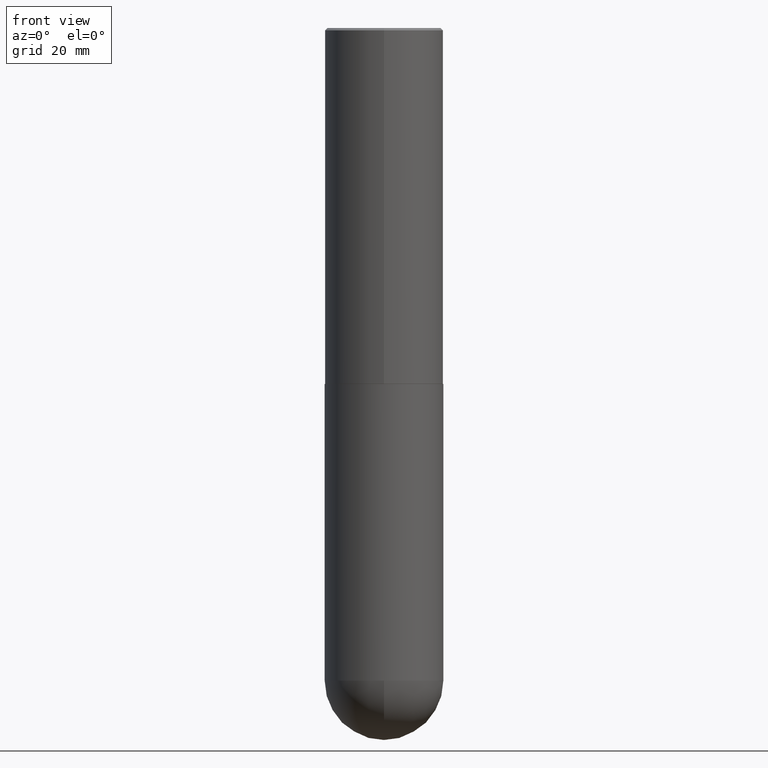
[diagram: clean part render]
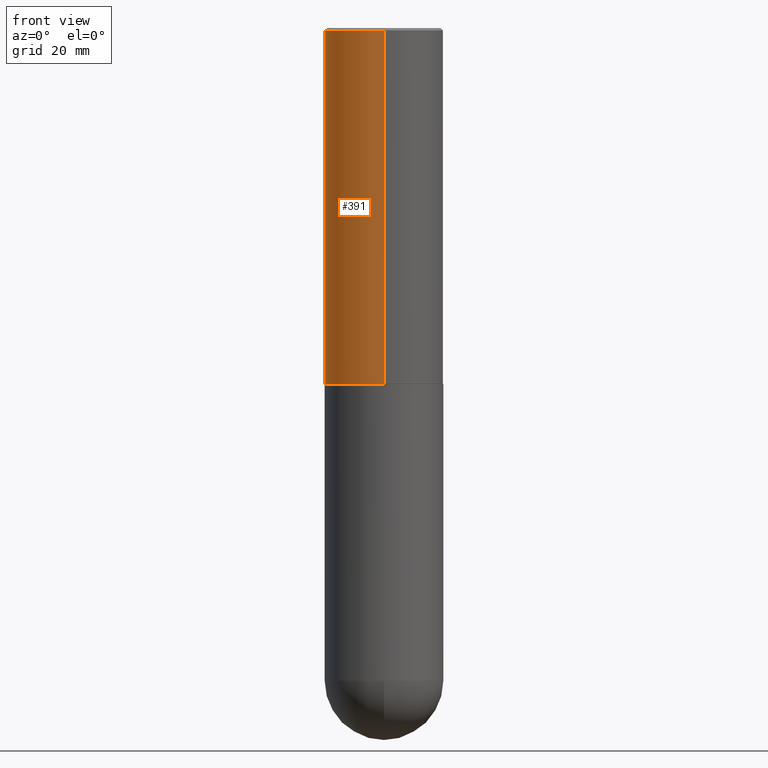
[diagram: same view with one face highlighted and labeled with its STEP entity id]
A machine part, front view. The second image highlights one B-rep face of the part: STEP entity #391.
In plain terms, the highlighted cylindrical surface (partial cylindrical patch) has radius 12.7 mm, axis along (-0, 0, 1).
Its self-contained STEP definition (entity closure, byte-faithful):
#23 = FACE_OUTER_BOUND ( 'NONE', #90, .T. ) ;
#25 = EDGE_CURVE ( 'NONE', #308, #328, #272, .T. ) ;
#30 = CIRCLE ( 'NONE', #96, 0.5000000000000004441 ) ;
#36 = LINE ( 'NONE', #293, #77 ) ;
#39 = DIRECTION ( 'NONE',  ( -2.445032266171691881E-29, 3.492106488988713156E-15, 1.000000000000000000 ) ) ;
#48 = DIRECTION ( 'NONE',  ( -2.445032266171691881E-29, 3.492106488988713156E-15, 1.000000000000000000 ) ) ;
#72 = CARTESIAN_POINT ( 'NONE',  ( -3.491481338843062752E-15, -0.5000000000000108802, -2.998999999999998778 ) ) ;
#76 = CARTESIAN_POINT ( 'NONE',  ( 3.491481338843133355E-15, 0.4999999999999999445, -0.02000000000000185310 ) ) ;
#77 = VECTOR ( 'NONE', #397, 39.37007874015748143 ) ;
#82 = AXIS2_PLACEMENT_3D ( 'NONE', #156, #39, #131 ) ;
#90 = EDGE_LOOP ( 'NONE', ( #242, #223, #237, #281 ) ) ;
#96 = AXIS2_PLACEMENT_3D ( 'NONE', #334, #48, #276 ) ;
#131 = DIRECTION ( 'NONE',  ( -6.982962677686265922E-15, -1.000000000000000000, 3.491643216902136408E-15 ) ) ;
#133 = DIRECTION ( 'NONE',  ( -2.445032266171692161E-29, 3.492106488988713156E-15, 1.000000000000000000 ) ) ;
#146 = CARTESIAN_POINT ( 'NONE',  ( 0.000000000000000000, 0.000000000000000000, 0.000000000000000000 ) ) ;
#153 = VECTOR ( 'NONE', #133, 39.37007874015748143 ) ;
#156 = CARTESIAN_POINT ( 'NONE',  ( 4.890064532343409545E-31, -6.984212977977462847E-17, -0.02000000000000010797 ) ) ;
#168 = CARTESIAN_POINT ( 'NONE',  ( -3.491481338843134539E-15, -0.5000000000000002220, 1.746053244494357170E-15 ) ) ;
#175 = CYLINDRICAL_SURFACE ( 'NONE', #187, 0.5000000000000002220 ) ;
#187 = AXIS2_PLACEMENT_3D ( 'NONE', #146, #312, #239 ) ;
#191 = CARTESIAN_POINT ( 'NONE',  ( 3.552713678800539584E-15, 0.4999999999999900080, -2.999000000000001886 ) ) ;
#202 = VERTEX_POINT ( 'NONE', #191 ) ;
#223 = ORIENTED_EDGE ( 'NONE', *, *, #333, .T. ) ;
#237 = ORIENTED_EDGE ( 'NONE', *, *, #350, .T. ) ;
#239 = DIRECTION ( 'NONE',  ( -6.982962677686265922E-15, -1.000000000000000000, 3.492106488988712762E-15 ) ) ;
#242 = ORIENTED_EDGE ( 'NONE', *, *, #258, .F. ) ;
#258 = EDGE_CURVE ( 'NONE', #202, #308, #36, .T. ) ;
#272 = CIRCLE ( 'NONE', #82, 0.5000000000000000000 ) ;
#276 = DIRECTION ( 'NONE',  ( -6.982962677686265133E-15, -1.000000000000000000, 3.278217592397113101E-15 ) ) ;
#277 = CARTESIAN_POINT ( 'NONE',  ( -3.430248998885764992E-15, -0.5000000000000001110, -0.01999999999999835937 ) ) ;
#281 = ORIENTED_EDGE ( 'NONE', *, *, #25, .F. ) ;
#293 = CARTESIAN_POINT ( 'NONE',  ( 3.552713678800501718E-15, 0.5000000000000002220, -1.746053244494357170E-15 ) ) ;
#308 = VERTEX_POINT ( 'NONE', #76 ) ;
#312 = DIRECTION ( 'NONE',  ( -2.445032266171691881E-29, 3.492106488988713156E-15, 1.000000000000000000 ) ) ;
#328 = VERTEX_POINT ( 'NONE', #277 ) ;
#333 = EDGE_CURVE ( 'NONE', #202, #375, #30, .T. ) ;
#334 = CARTESIAN_POINT ( 'NONE',  ( 7.332651766248905611E-29, -1.047282736047715268E-14, -2.999000000000000554 ) ) ;
#350 = EDGE_CURVE ( 'NONE', #375, #328, #367, .T. ) ;
#367 = LINE ( 'NONE', #168, #153 ) ;
#375 = VERTEX_POINT ( 'NONE', #72 ) ;
#391 = ADVANCED_FACE ( 'NONE', ( #23 ), #175, .T. ) ;
#397 = DIRECTION ( 'NONE',  ( -2.445032266171692161E-29, 3.492106488988713156E-15, 1.000000000000000000 ) ) ;